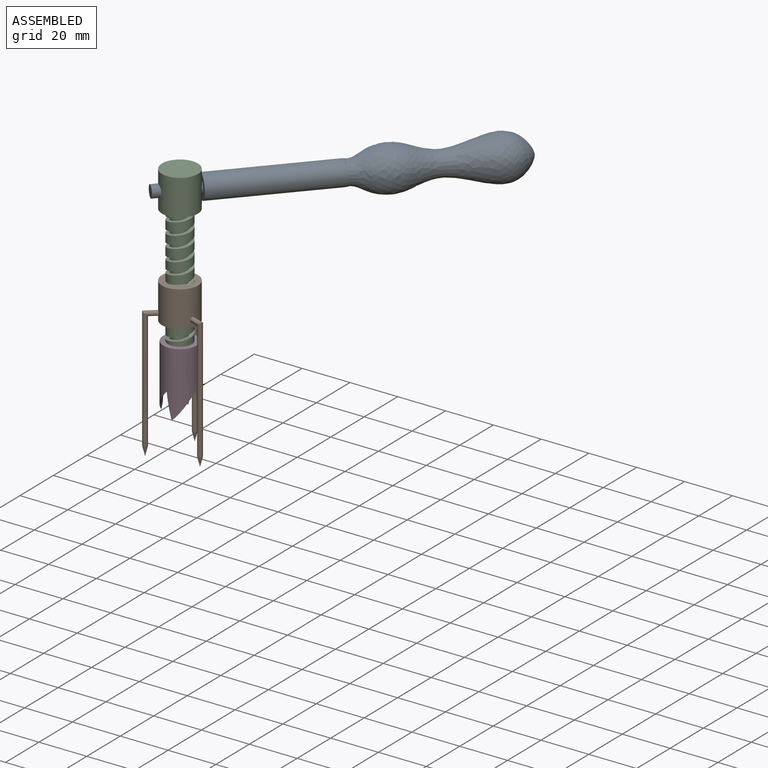
[diagram: assembled view]
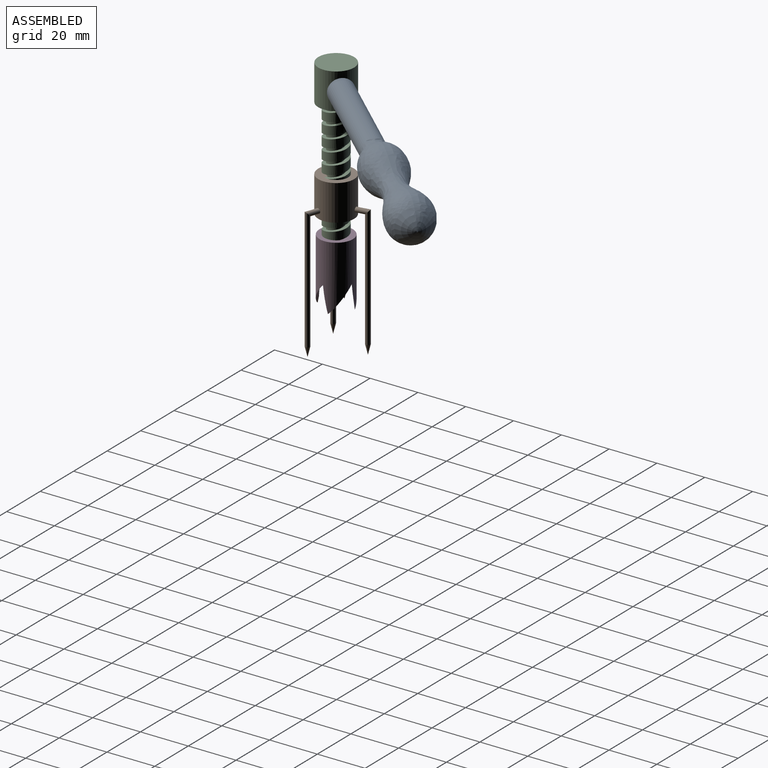
[diagram: assembled view, second angle]
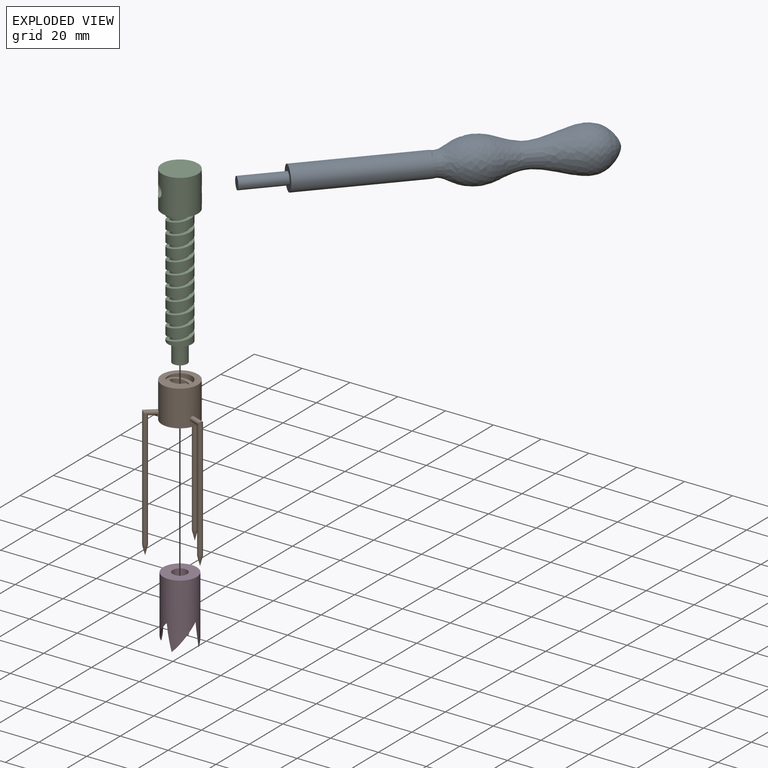
[diagram: exploded view]
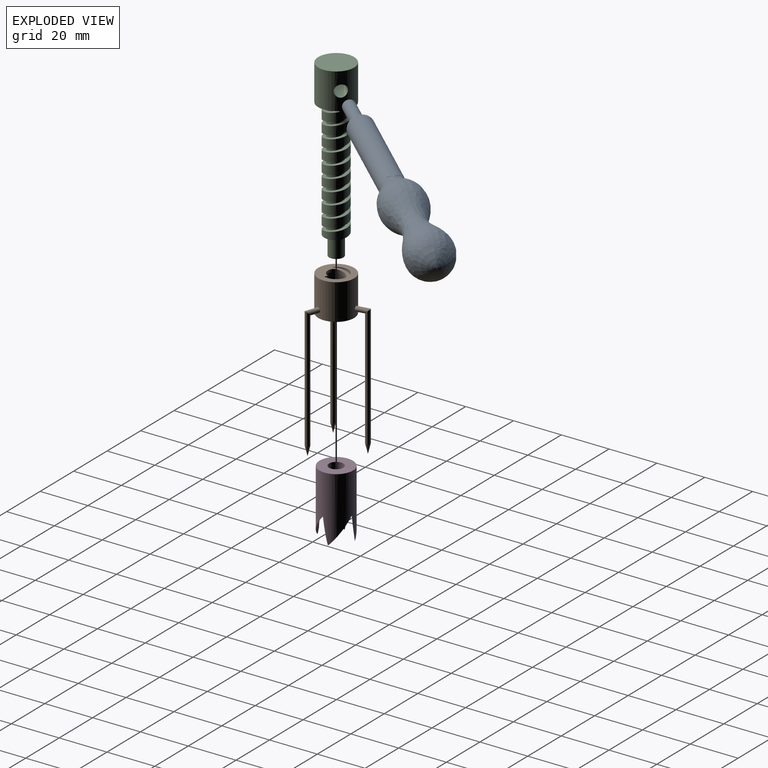
[diagram: exploded view, second angle]
ASSEMBLY  parts=4 mates=3
PART A: 5 faces, bbox 135.1x18.4x18.4 mm
  f0: cylinder r=2.5mm len=18mm, axis (-1,0,0), area 282.7mm2, adj f1,f3
  f1: plane 5x5mm, normal (-1,0,0), area 19.6mm2, adj f0
  f2: cylinder r=5mm len=50mm, axis (-1,0,0), area 1570.8mm2, adj f3,f4
  f3: plane 10x10mm, normal (-1,0,0), area 58.9mm2, adj f0,f2
  f4: revolved ~67.13x18.42mm, area 3132.7mm2, adj f2
PART B: 16 faces, bbox 20.5x23.5x66.7 mm
  f0: cylinder r=3.5mm len=15mm, axis (0,0,-1), area 99mm2, adj f1,f4,f5,f6
  f1: bspline ~15.83x11.55mm, area 122.3mm2, adj f0,f2,f5,f6
  f2: cylinder r=5mm len=15mm, axis (0,0,-1), area 329.8mm2, adj f1,f4,f5,f6
  f3: cylinder r=7.5mm len=15mm, axis (0,0,-1), area 697.4mm2, adj f5,f6,f7,f10,f13
  f4: bspline ~15.83x11.55mm, area 122.3mm2, adj f0,f2,f5,f6
  f5: plane 15x15mm, normal (0,0,-1), area 110.1mm2, adj f0,f1,f2,f3,f4
  f6: plane 15x15mm, normal (0,0,1), area 110.1mm2, adj f0,f1,f2,f3,f4
  f7: cylinder r=1mm len=5.5mm, axis (-1,0,0), area 28.3mm2, adj f3,f8
  f8: cylinder r=1mm len=51mm, axis (0,0,-1), area 314.2mm2, adj f7,f9
  f9: cone r=1mm half-angle=14deg, axis (0,0,-1), area 13mm2, adj f8
  f10: cylinder r=1mm len=5.76mm, axis (0.5,0.87,0), area 28.3mm2, adj f3,f11
  f11: cylinder r=1mm len=51mm, axis (0,0,-1), area 314.2mm2, adj f10,f12
  f12: cone r=1mm half-angle=14deg, axis (0,0,-1), area 13mm2, adj f11
  f13: cylinder r=1mm len=5.76mm, axis (0.5,-0.87,0), area 28.3mm2, adj f3,f14
  f14: cylinder r=1mm len=51mm, axis (0,0,-1), area 314.2mm2, adj f13,f15
  f15: cone r=1mm half-angle=14deg, axis (0,0,-1), area 13mm2, adj f14
PART C: 12 faces, bbox 15x15x73 mm
  f0: cylinder r=5mm len=50mm, axis (0,0,-1), area 1073.5mm2, adj f1,f4,f9,f10,f11
  f1: plane 10x9.77mm, normal (0,0,-1), area 38.3mm2, adj f0,f6,f8,f9,f11
  f2: cylinder r=7.5mm len=15mm, axis (0,0,-1), area 667mm2, adj f3,f4,f5
  f3: plane 15x15mm, normal (0,0,1), area 176.7mm2, adj f2
  f4: plane 15x15mm, normal (0,0,-1), area 98.2mm2, adj f0,f2
  f5: cylinder r=2.5mm len=15mm, axis (1,0,0), area 228.9mm2, adj f2
  f6: cylinder r=3mm len=8mm, axis (0,0,1), area 150.8mm2, adj f1,f7
  f7: plane 6x6mm, normal (0,0,-1), area 28.3mm2, adj f6
  f8: cylinder r=3.5mm len=50mm, axis (0,0,1), area 280.4mm2, adj f1,f9,f10,f11
  f9: bspline ~49.17x11.55mm, area 394.4mm2, adj f0,f1,f8,f10
  f10: plane 1.5x1.5mm, normal (0,-1,0), area 2.3mm2, adj f0,f8,f9,f11
  f11: bspline ~50x11.55mm, area 406.8mm2, adj f0,f1,f8,f10
PART D: 14 faces, bbox 25.5x25.5x32.2 mm
  f0: cylinder r=6mm len=13.78mm, axis (0,0,-1), area 342.3mm2, adj f2,f3,f4,f5,f6,f7,f8,f9
  f1: cylinder r=7mm len=27.27mm, axis (0,0,-1), area 972.8mm2, adj f2,f3,f4,f5,f6,f7,f8,f9
  f2: bspline ~16.74x11.22mm, area 23mm2, adj f0,f1,f7,f8
  f3: bspline ~16.74x11.22mm, area 23mm2, adj f0,f1,f6,f7
  f4: bspline ~16.74x11.22mm, area 23mm2, adj f0,f1,f8,f9
  f5: bspline ~16.74x11.22mm, area 23mm2, adj f0,f1,f6,f9
  f6: bspline ~19.92x18.33mm, area 19mm2, adj f0,f1,f3,f5
  f7: bspline ~19.92x18.33mm, area 19mm2, adj f0,f1,f2,f3
  f8: bspline ~19.92x18.33mm, area 17.6mm2, adj f0,f1,f2,f4
  f9: bspline ~19.92x18.33mm, area 19mm2, adj f0,f1,f4,f5
  f10: plane 12x12mm, normal (0,0,-1), area 113.1mm2, adj f0
  f11: plane 6x6mm, normal (0,0,1), area 28.3mm2, adj f12
  f12: cylinder r=3mm len=8mm, axis (0,0,1), area 150.8mm2, adj f11,f13
  f13: plane 14x14mm, normal (0,0,1), area 125.7mm2, adj f1,f12
PLACE A rot(axis=(0,0,1),47.9deg) t=(116.42,146.98,52.73)mm
PLACE B rot(axis=(-0.98,0.17,0),180deg) t=(117.36,148.03,18.04)mm fixed
PLACE C rot(axis=(0,0,1),47.9deg) t=(117.36,148.03,-4.77)mm
PLACE D rot(axis=(0,0,1),47.9deg) t=(117.36,148.03,-34.77)mm
MATE fastened C.f5 <-> A.f0  axis (0.67,0.74,0) through (122.45,153.66,52.73)mm
MATE fastened D.f12 <-> C.f6  axis (0,0,1) through (117.36,148.03,-12.77)mm
MATE cylindrical B.f0 <-> C.f0  axis (0,0,-1) through (117.36,148.03,3.04)mm
